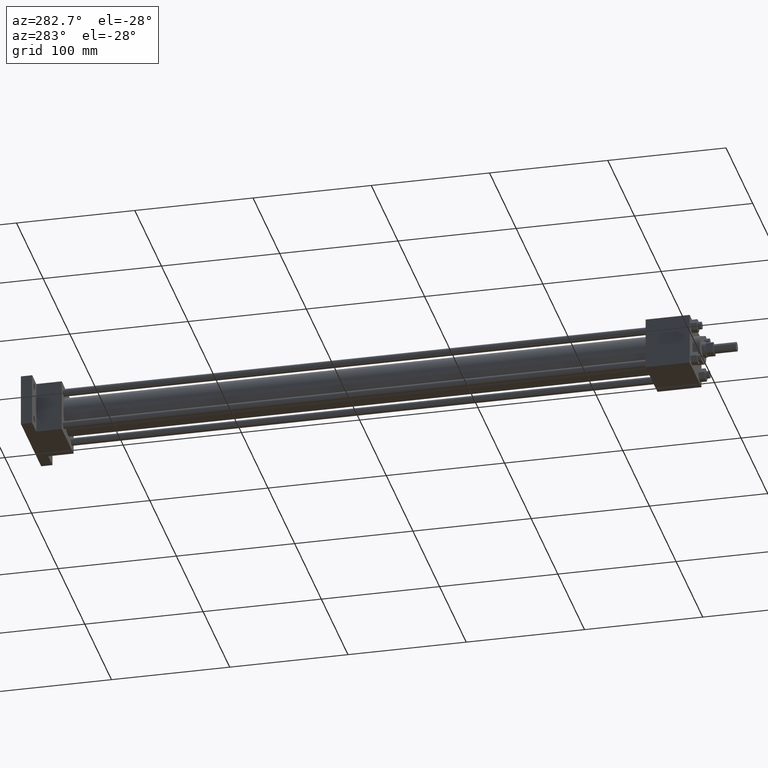
[diagram: clean part render]
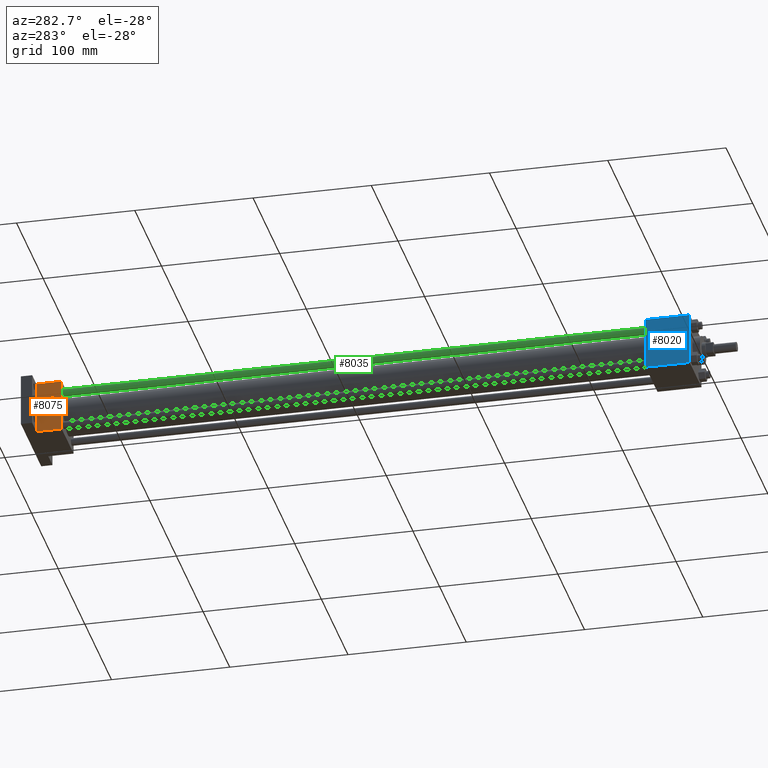
[diagram: same view with three faces highlighted in distinct colors, each labeled with its STEP entity id]
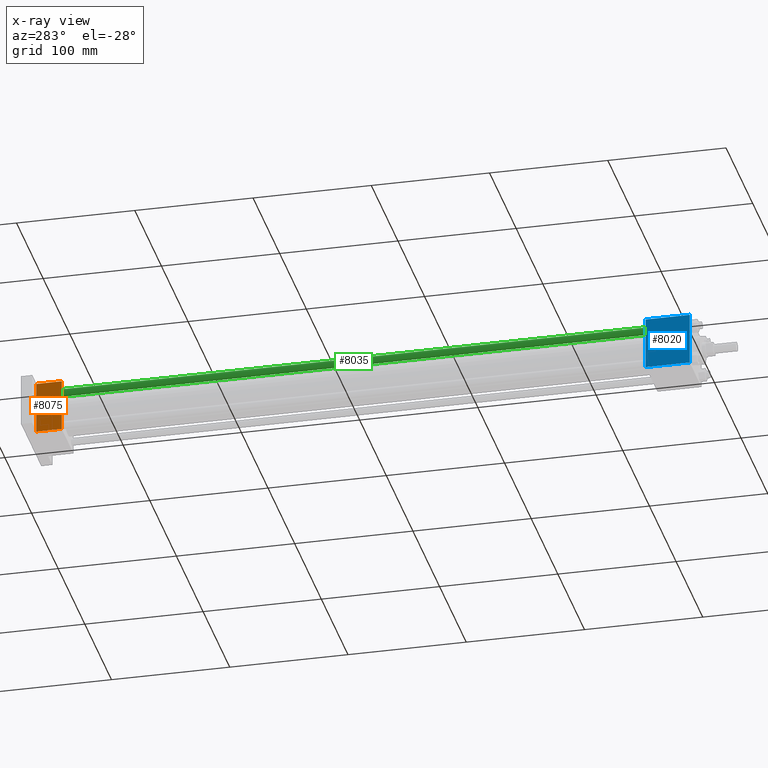
[diagram: x-ray of the same camera — body ghosted, the three highlighted faces saturated]
A machine part, auxiliary view with three faces highlighted in distinct colors.
The next image is the same camera in x-ray (body ghosted, the three faces saturated) — at least one of them is partly hidden behind the body in this view.
Their STEP definitions:

[orange] entity #8075 — the highlighted planar face has unit normal (-1, 0, 0).
#3430=VERTEX_POINT('',#3432);
#3432=CARTESIAN_POINT('',(-2.222500000E+001,5.468937500E+002,-2.222500000E+001));
#3446=VERTEX_POINT('',#3447);
#3447=CARTESIAN_POINT('',(-2.222500000E+001,5.468937500E+002,2.222500000E+001));
#3448=EDGE_CURVE('',#3446,#3430,#3449,.T.);
#3449=LINE('',#3450,#3451);
#3450=CARTESIAN_POINT('',(-2.222500000E+001,5.468937500E+002,2.222500000E+001));
#3451=VECTOR('',#3452,1.0E+000);
#3452=DIRECTION('',(0.0E+000,0.0E+000,-1.0E+000));
#3498=EDGE_CURVE('',#3503,#3430,#3499,.T.);
#3499=LINE('',#3500,#3501);
#3500=CARTESIAN_POINT('',(-2.222500000E+001,5.683250000E+002,-2.222500000E+001));
#3501=VECTOR('',#3502,1.0E+000);
#3502=DIRECTION('',(0.0E+000,-1.0E+000,0.0E+000));
#3503=VERTEX_POINT('',#3504);
#3504=CARTESIAN_POINT('',(-2.222500000E+001,5.683250000E+002,-2.222500000E+001));
#3603=VERTEX_POINT('',#3604);
#3604=CARTESIAN_POINT('',(-2.222500000E+001,5.683250000E+002,2.222500000E+001));
#3605=EDGE_CURVE('',#3603,#3446,#3606,.T.);
#3606=LINE('',#3607,#3608);
#3607=CARTESIAN_POINT('',(-2.222500000E+001,5.683250000E+002,2.222500000E+001));
#3608=VECTOR('',#3609,1.0E+000);
#3609=DIRECTION('',(0.0E+000,-1.0E+000,0.0E+000));
#3624=FACE_OUTER_BOUND('',#3626,.T.);
#3625=FACE_BOUND('',#3627,.T.);
#3626=EDGE_LOOP('',(#3628,#3629,#3630,#3631));
#3627=EDGE_LOOP('',(#3637));
#3628=ORIENTED_EDGE('',*,*,#3448,.F.);
#3629=ORIENTED_EDGE('',*,*,#3605,.F.);
#3630=ORIENTED_EDGE('',*,*,#3632,.T.);
#3631=ORIENTED_EDGE('',*,*,#3498,.T.);
#3632=EDGE_CURVE('',#3603,#3503,#3633,.T.);
#3633=LINE('',#3634,#3635);
#3634=CARTESIAN_POINT('',(-2.222500000E+001,5.683250000E+002,2.222500000E+001));
#3635=VECTOR('',#3636,1.0E+000);
#3636=DIRECTION('',(0.0E+000,0.0E+000,-1.0E+000));
#3637=ORIENTED_EDGE('',*,*,#3638,.T.);
#3638=EDGE_CURVE('',#3644,#3644,#3639,.T.);
#3639=CIRCLE('',#3640,2.778125000E+000);
#3640=AXIS2_PLACEMENT_3D('',#3641,#3642,#3643);
#3641=CARTESIAN_POINT('',(-2.222500000E+001,5.548312500E+002,6.350000000E+000));
#3642=DIRECTION('',(1.0E+000,0.0E+000,0.0E+000));
#3643=DIRECTION('',(0.0E+000,-1.0E+000,0.0E+000));
#3644=VERTEX_POINT('',#3645);
#3645=CARTESIAN_POINT('',(-2.222500000E+001,5.520531250E+002,6.350000000E+000));
#3646=PLANE('',#3647);
#3647=AXIS2_PLACEMENT_3D('',#3648,#3649,#3650);
#3648=CARTESIAN_POINT('',(-2.222500000E+001,5.683250000E+002,2.222500000E+001));
#3649=DIRECTION('',(-1.0E+000,0.0E+000,0.0E+000));
#3650=DIRECTION('',(0.0E+000,0.0E+000,1.0E+000));
#8075=ADVANCED_FACE('',(#3624,#3625),#3646,.T.);

[blue] entity #8020 — the highlighted planar face has unit normal (-1, 0, 0).
#485=VERTEX_POINT('',#487);
#487=CARTESIAN_POINT('',(-2.222500000E+001,5.318125000E+001,-2.222500000E+001));
#489=EDGE_CURVE('',#494,#485,#490,.T.);
#490=LINE('',#491,#492);
#491=CARTESIAN_POINT('',(-2.222500000E+001,5.318125000E+001,2.222500000E+001));
#492=VECTOR('',#493,1.0E+000);
#493=DIRECTION('',(0.0E+000,0.0E+000,-1.0E+000));
#494=VERTEX_POINT('',#495);
#495=CARTESIAN_POINT('',(-2.222500000E+001,5.318125000E+001,2.222500000E+001));
#569=VERTEX_POINT('',#570);
#570=CARTESIAN_POINT('',(-2.222500000E+001,1.587500000E+001,-2.222500000E+001));
#571=EDGE_CURVE('',#485,#569,#572,.T.);
#572=LINE('',#573,#574);
#573=CARTESIAN_POINT('',(-2.222500000E+001,5.318125000E+001,-2.222500000E+001));
#574=VECTOR('',#575,1.0E+000);
#575=DIRECTION('',(0.0E+000,-1.0E+000,0.0E+000));
#598=EDGE_CURVE('',#494,#603,#599,.T.);
#599=LINE('',#600,#601);
#600=CARTESIAN_POINT('',(-2.222500000E+001,5.318125000E+001,2.222500000E+001));
#601=VECTOR('',#602,1.0E+000);
#602=DIRECTION('',(0.0E+000,-1.0E+000,0.0E+000));
#603=VERTEX_POINT('',#604);
#604=CARTESIAN_POINT('',(-2.222500000E+001,1.587500000E+001,2.222500000E+001));
#631=FACE_OUTER_BOUND('',#633,.T.);
#632=FACE_BOUND('',#634,.T.);
#633=EDGE_LOOP('',(#635,#636,#637,#638));
#634=EDGE_LOOP('',(#644));
#635=ORIENTED_EDGE('',*,*,#489,.T.);
#636=ORIENTED_EDGE('',*,*,#571,.T.);
#637=ORIENTED_EDGE('',*,*,#639,.F.);
#638=ORIENTED_EDGE('',*,*,#598,.F.);
#639=EDGE_CURVE('',#603,#569,#640,.T.);
#640=LINE('',#641,#642);
#641=CARTESIAN_POINT('',(-2.222500000E+001,1.587500000E+001,2.222500000E+001));
#642=VECTOR('',#643,1.0E+000);
#643=DIRECTION('',(0.0E+000,0.0E+000,-1.0E+000));
#644=ORIENTED_EDGE('',*,*,#645,.T.);
#645=EDGE_CURVE('',#651,#651,#646,.T.);
#646=CIRCLE('',#647,2.778125000E+000);
#647=AXIS2_PLACEMENT_3D('',#648,#649,#650);
#648=CARTESIAN_POINT('',(-2.222500000E+001,4.524375000E+001,6.350000000E+000));
#649=DIRECTION('',(1.0E+000,0.0E+000,0.0E+000));
#650=DIRECTION('',(0.0E+000,-1.0E+000,0.0E+000));
#651=VERTEX_POINT('',#652);
#652=CARTESIAN_POINT('',(-2.222500000E+001,4.246562500E+001,6.350000000E+000));
#653=PLANE('',#654);
#654=AXIS2_PLACEMENT_3D('',#655,#656,#657);
#655=CARTESIAN_POINT('',(-2.222500000E+001,5.318125000E+001,2.222500000E+001));
#656=DIRECTION('',(-1.0E+000,0.0E+000,0.0E+000));
#657=DIRECTION('',(0.0E+000,0.0E+000,1.0E+000));
#8020=ADVANCED_FACE('',(#631,#632),#653,.T.);

[green] entity #8035 — the highlighted cylindrical surface (bore or boss wall) has radius 3.175 mm, axis along (0, -1, 0).
#509=EDGE_CURVE('',#515,#515,#510,.T.);
#510=CIRCLE('',#511,3.175000000E+000);
#511=AXIS2_PLACEMENT_3D('',#512,#513,#514);
#512=CARTESIAN_POINT('',(-1.511300000E+001,5.318125000E+001,1.511300000E+001));
#513=DIRECTION('',(0.0E+000,1.0E+000,0.0E+000));
#514=DIRECTION('',(1.0E+000,0.0E+000,0.0E+000));
#515=VERTEX_POINT('',#516);
#516=CARTESIAN_POINT('',(-1.193800000E+001,5.318125000E+001,1.511300000E+001));
#2397=FACE_OUTER_BOUND('',#2399,.T.);
#2398=FACE_BOUND('',#2400,.T.);
#2399=EDGE_LOOP('',(#2401));
#2400=EDGE_LOOP('',(#2402));
#2401=ORIENTED_EDGE('',*,*,#2456,.F.);
#2402=ORIENTED_EDGE('',*,*,#509,.T.);
#2403=CYLINDRICAL_SURFACE('',#2404,3.175000000E+000);
#2404=AXIS2_PLACEMENT_3D('',#2405,#2406,#2407);
#2405=CARTESIAN_POINT('',(-1.511300000E+001,5.468937500E+002,1.511300000E+001));
#2406=DIRECTION('',(0.0E+000,-1.0E+000,0.0E+000));
#2407=DIRECTION('',(0.0E+000,0.0E+000,-1.0E+000));
#2456=EDGE_CURVE('',#2462,#2462,#2457,.T.);
#2457=CIRCLE('',#2458,3.175000000E+000);
#2458=AXIS2_PLACEMENT_3D('',#2459,#2460,#2461);
#2459=CARTESIAN_POINT('',(-1.511300000E+001,5.468937500E+002,1.511300000E+001));
#2460=DIRECTION('',(0.0E+000,1.0E+000,0.0E+000));
#2461=DIRECTION('',(1.0E+000,0.0E+000,0.0E+000));
#2462=VERTEX_POINT('',#2463);
#2463=CARTESIAN_POINT('',(-1.193800000E+001,5.468937500E+002,1.511300000E+001));
#8035=ADVANCED_FACE('',(#2397,#2398),#2403,.T.);